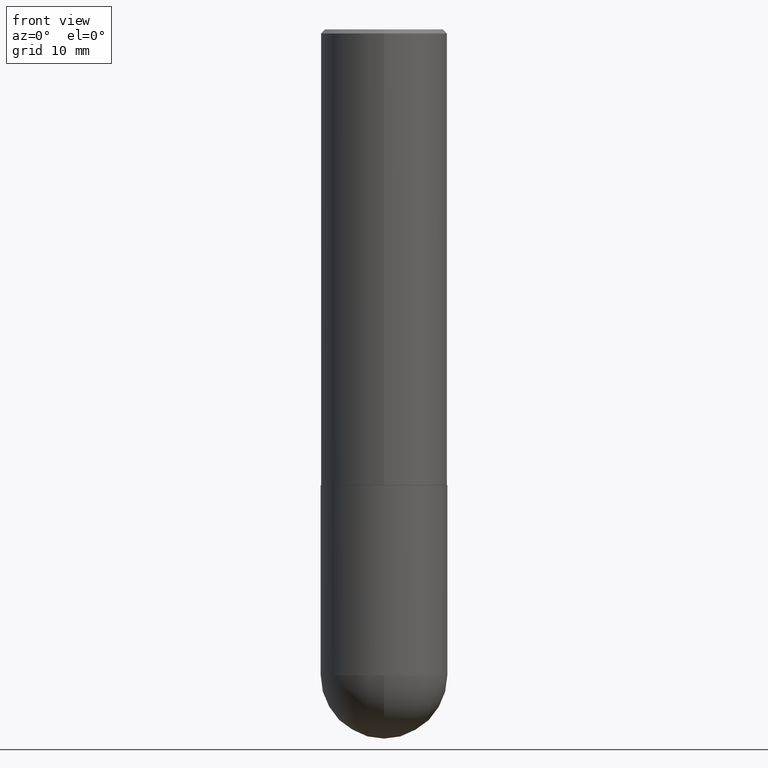
[diagram: clean part render]
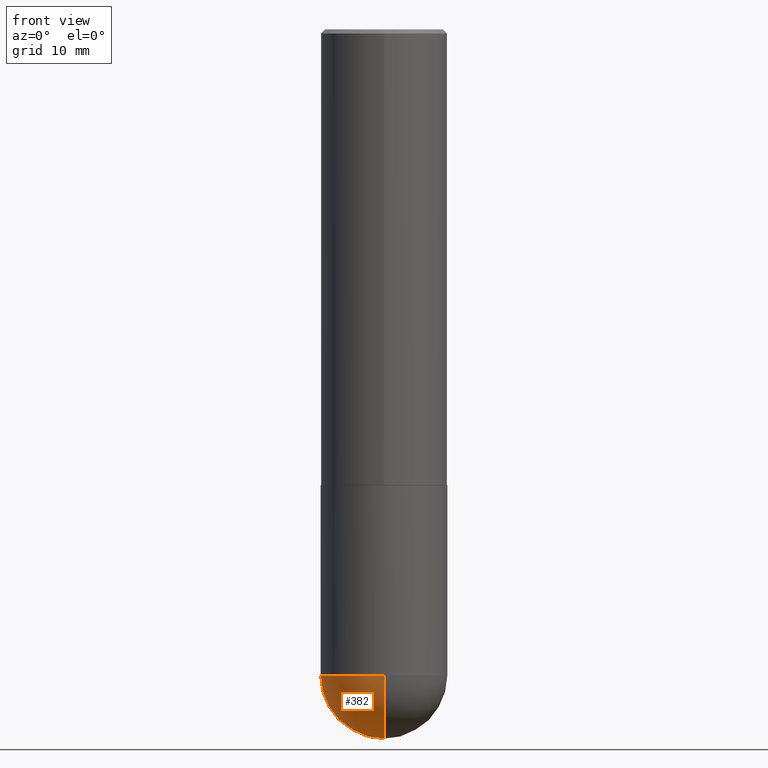
[diagram: same view with one face highlighted and labeled with its STEP entity id]
A machine part, front view. The second image highlights one B-rep face of the part: STEP entity #382.
In plain terms, the highlighted spherical surface has radius 7.9375 mm.
Its self-contained STEP definition (entity closure, byte-faithful):
#5 = EDGE_CURVE ( 'NONE', #403, #271, #26, .T. ) ;
#7 = CARTESIAN_POINT ( 'NONE',  ( 7.463812041801236655E-29, -1.160327913570257494E-14, -3.187500000000000000 ) ) ;
#26 = CIRCLE ( 'NONE', #283, 0.3125000000000002776 ) ;
#32 = DIRECTION ( 'NONE',  ( 1.000000000000000000, -6.982962677686269077E-15, 0.000000000000000000 ) ) ;
#38 = AXIS2_PLACEMENT_3D ( 'NONE', #172, #361, #32 ) ;
#40 = VERTEX_POINT ( 'NONE', #49 ) ;
#49 = CARTESIAN_POINT ( 'NONE',  ( -0.3125000000000000000, -7.272018840729490833E-15, -3.187500000000000000 ) ) ;
#61 = EDGE_CURVE ( 'NONE', #271, #40, #64, .T. ) ;
#64 = CIRCLE ( 'NONE', #86, 0.3125000000000000000 ) ;
#85 = CARTESIAN_POINT ( 'NONE',  ( 7.463812041801236655E-29, -1.160327913570257494E-14, -3.187500000000000000 ) ) ;
#86 = AXIS2_PLACEMENT_3D ( 'NONE', #88, #272, #394 ) ;
#88 = CARTESIAN_POINT ( 'NONE',  ( 7.794931819715121781E-29, -1.112909676756252622E-14, -3.187500000000000000 ) ) ;
#105 = DIRECTION ( 'NONE',  ( -1.000000000000000000, 6.982962677686265922E-15, -4.883557194083112901E-29 ) ) ;
#129 = CARTESIAN_POINT ( 'NONE',  ( 7.463812041801236655E-29, -1.160327913570257494E-14, -3.187500000000000000 ) ) ;
#140 = SPHERICAL_SURFACE ( 'NONE', #384, 0.3125000000000002776 ) ;
#170 = DIRECTION ( 'NONE',  ( 6.982962677686265922E-15, 1.000000000000000000, -3.496765431890253764E-15 ) ) ;
#172 = CARTESIAN_POINT ( 'NONE',  ( 7.794931819715121781E-29, -1.112909676756252622E-14, -3.187500000000000000 ) ) ;
#203 = EDGE_LOOP ( 'NONE', ( #249, #206, #307, #233 ) ) ;
#206 = ORIENTED_EDGE ( 'NONE', *, *, #210, .T. ) ;
#210 = EDGE_CURVE ( 'NONE', #403, #211, #347, .T. ) ;
#211 = VERTEX_POINT ( 'NONE', #355 ) ;
#226 = CIRCLE ( 'NONE', #38, 0.3125000000000000000 ) ;
#233 = ORIENTED_EDGE ( 'NONE', *, *, #61, .F. ) ;
#249 = ORIENTED_EDGE ( 'NONE', *, *, #5, .F. ) ;
#256 = DIRECTION ( 'NONE',  ( -1.000000000000000000, 7.105427357601001070E-15, -4.926315508542082329E-29 ) ) ;
#271 = VERTEX_POINT ( 'NONE', #331 ) ;
#272 = DIRECTION ( 'NONE',  ( -2.445468806185136597E-29, 3.491481338843145583E-15, 1.000000000000000000 ) ) ;
#283 = AXIS2_PLACEMENT_3D ( 'NONE', #85, #315, #341 ) ;
#292 = DIRECTION ( 'NONE',  ( -7.105427357601000281E-15, -1.000000000000000000, 0.000000000000000000 ) ) ;
#307 = ORIENTED_EDGE ( 'NONE', *, *, #380, .F. ) ;
#308 = AXIS2_PLACEMENT_3D ( 'NONE', #129, #256, #292 ) ;
#315 = DIRECTION ( 'NONE',  ( 1.000000000000000000, -6.982962677686265922E-15, 4.883557194083112340E-29 ) ) ;
#331 = CARTESIAN_POINT ( 'NONE',  ( 2.182175836777035261E-15, 0.3124999999999887867, -3.187500000000000888 ) ) ;
#334 = FACE_OUTER_BOUND ( 'NONE', #203, .T. ) ;
#341 = DIRECTION ( 'NONE',  ( 6.982962677686265922E-15, 1.000000000000000000, 0.000000000000000000 ) ) ;
#347 = CIRCLE ( 'NONE', #308, 0.3125000000000002776 ) ;
#355 = CARTESIAN_POINT ( 'NONE',  ( -2.220446049250237350E-15, -0.3125000000000114908, -3.187499999999998668 ) ) ;
#361 = DIRECTION ( 'NONE',  ( -2.445468806185136597E-29, 3.491481338843145583E-15, 1.000000000000000000 ) ) ;
#364 = CARTESIAN_POINT ( 'NONE',  ( 8.241383017002520278E-29, -1.267523194785438148E-14, -3.500000000000000444 ) ) ;
#380 = EDGE_CURVE ( 'NONE', #40, #211, #226, .T. ) ;
#382 = ADVANCED_FACE ( 'NONE', ( #334 ), #140, .T. ) ;
#384 = AXIS2_PLACEMENT_3D ( 'NONE', #7, #105, #170 ) ;
#394 = DIRECTION ( 'NONE',  ( 1.000000000000000000, -6.982962677686269077E-15, 0.000000000000000000 ) ) ;
#403 = VERTEX_POINT ( 'NONE', #364 ) ;